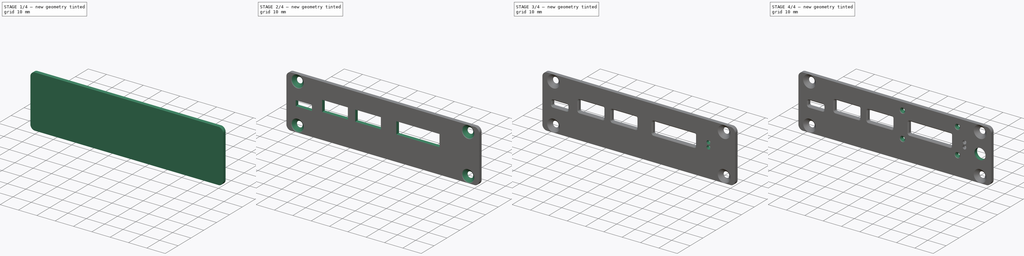
[diagram: build sequence overview — one tinted view per stage of 4, left to right]
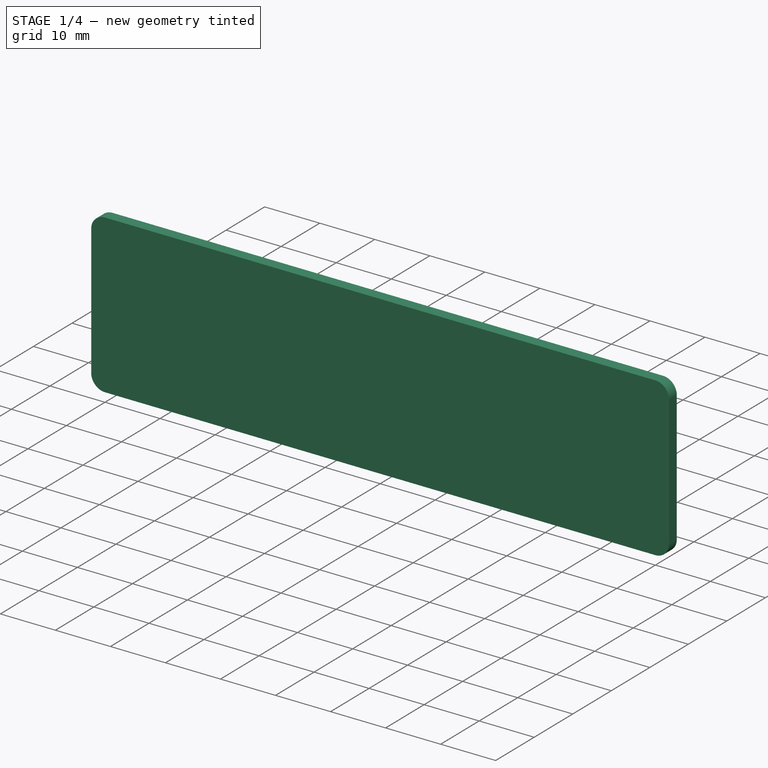
[diagram: stage 1 of 4 — iso view after this stage's code; geometry added in this stage tinted green]
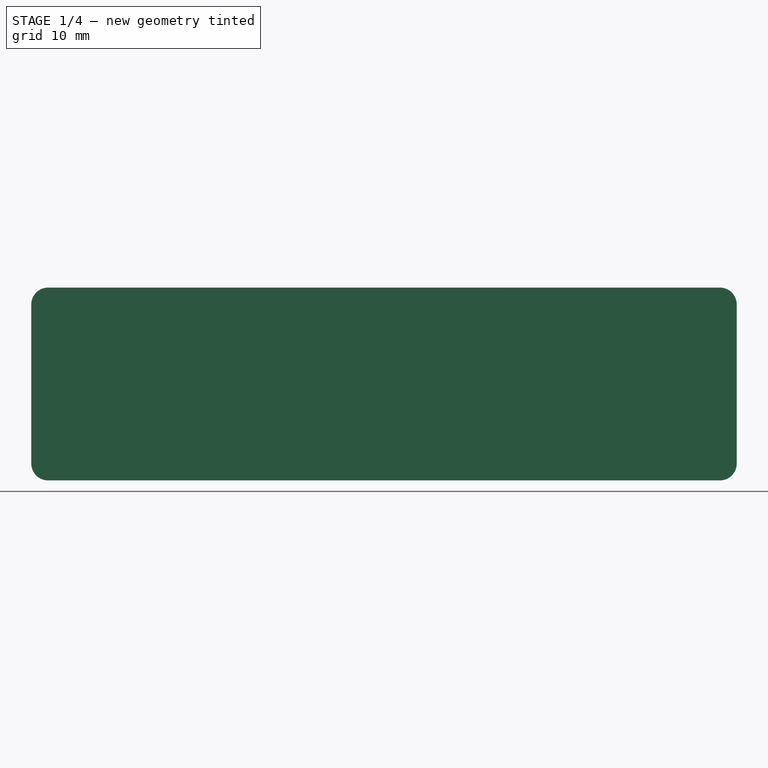
[diagram: stage 1 of 4 — front view after this stage's code; geometry added in this stage tinted green]
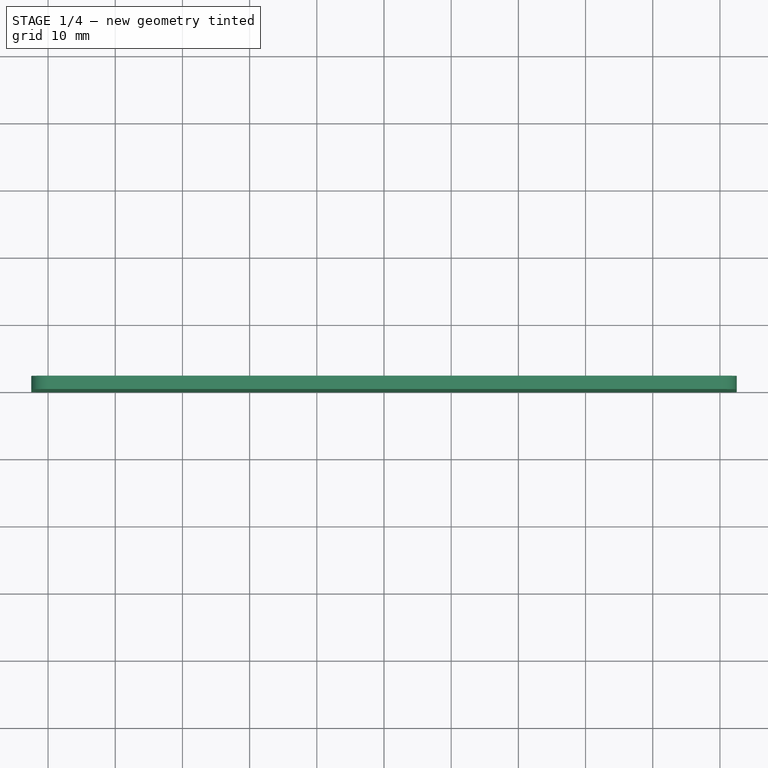
[diagram: stage 1 of 4 — top view after this stage's code; geometry added in this stage tinted green]
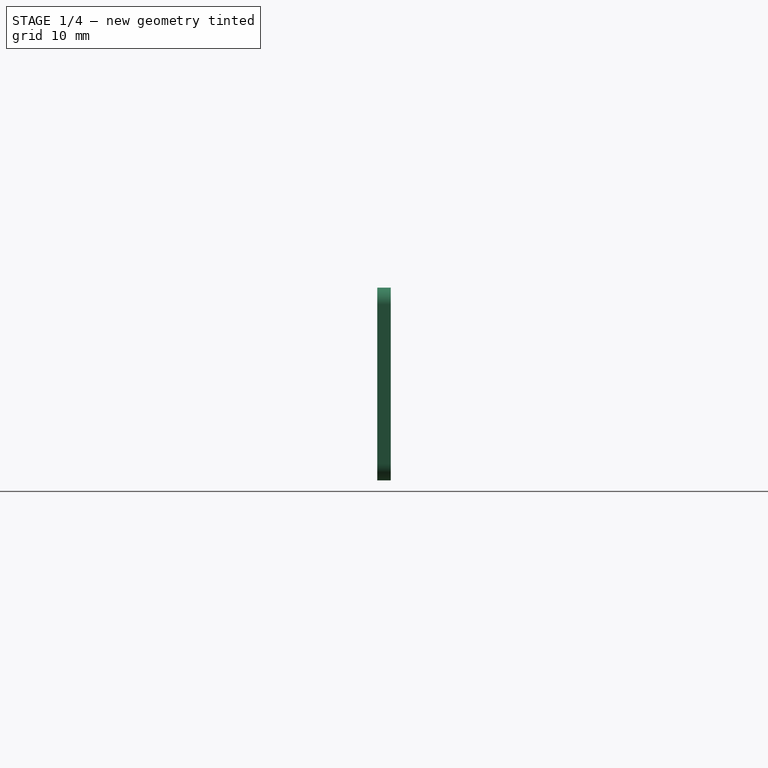
[diagram: stage 1 of 4 — right view after this stage's code; geometry added in this stage tinted green]
FCSTD DOCUMENT  (FreeCAD 0.19R24267 +99 (Git))
Label: KOH_Plate_Front
License: All rights reserved
LicenseURL: http://en.wikipedia.org/wiki/All_rights_reserved
objects: Sketcher::SketchObject×6, PartDesign::Hole×4, PartDesign::CoordinateSystem×3, PartDesign::Fillet×2, PartDesign::Pad×1, PartDesign::Pocket×1, PartDesign::Chamfer×1, PartDesign::Body×1, App::Part×1
note: 28 computed .brp shape members not serialized (recipe doc carries the construction recipe); baked Part::Feature solids carry a one-line shape summary decoded from their .brp

FEATURE [Sketcher::SketchObject] Sketch
  FullyConstrained = true
  MapMode = 5
  Placement = pos=(0,0,0) rot=(1,0,0;1.5708rad)
  Support = -> [XZ_Plane]
  sketch-geometry (4):
    g0: LineSegment StartX=-52.5 StartY=-14.35 StartZ=0 EndX=52.5 EndY=-14.35 EndZ=0
    g1: LineSegment StartX=52.5 StartY=-14.35 StartZ=0 EndX=52.5 EndY=14.35 EndZ=0
    g2: LineSegment StartX=52.5 StartY=14.35 StartZ=0 EndX=-52.5 EndY=14.35 EndZ=0
    g3: LineSegment StartX=-52.5 StartY=14.35 StartZ=0 EndX=-52.5 EndY=-14.35 EndZ=0
  constraints (10):
    c: Coincident(g0,g1)
    c: Coincident(g1,g2)
    c: Coincident(g2,g3)
    c: Coincident(g3,g0)
    c: Horizontal(g0)
    c: Vertical(g1)
    c: Symmetric(g2,g0,g-1)
    c: Symmetric(g2,g1,g-2)
    c: Distance(g2) = 105
    c: Distance(g3) = 28.7
FEATURE [PartDesign::Pad] Pad
  Direction = (1,1,1)
  Length = 2
  Length2 = 100
  Placement = pos=(0,0,0) rot=(1,0,0;1.5708rad)
  Profile = -> Sketch
  Refine = true
  Reversed = true
  Type = 0
FEATURE [PartDesign::Fillet] Fillet
  Base = -> Pad [Edge5,Edge2,Edge8,Edge1]
  BaseFeature = -> Pad
  Placement = pos=(0,0,0) rot=(1,0,0;1.5708rad)
  Radius = 2.5
  Refine = true
  SupportTransform = false
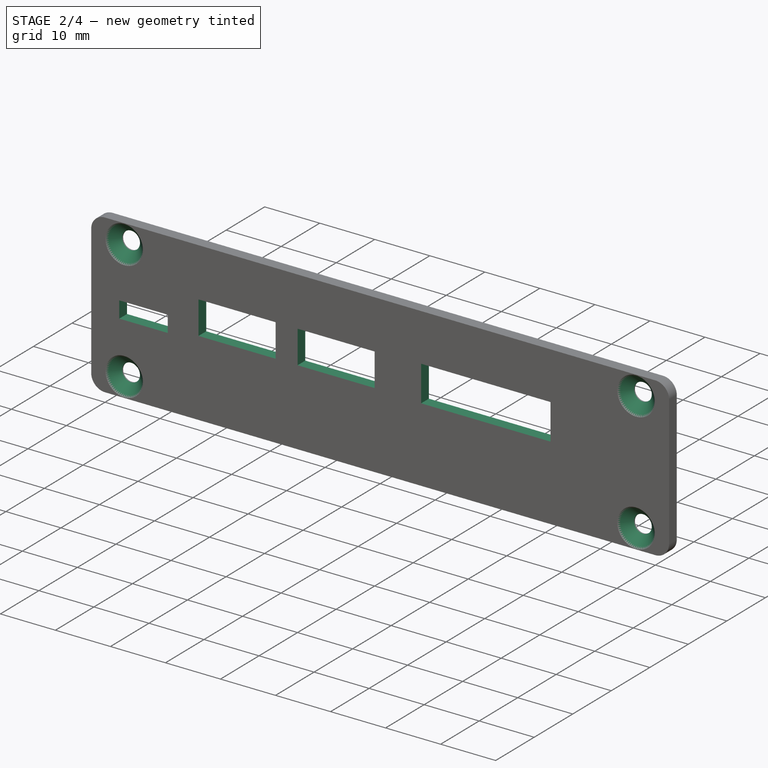
[diagram: stage 2 of 4 — iso view after this stage's code; geometry added in this stage tinted green]
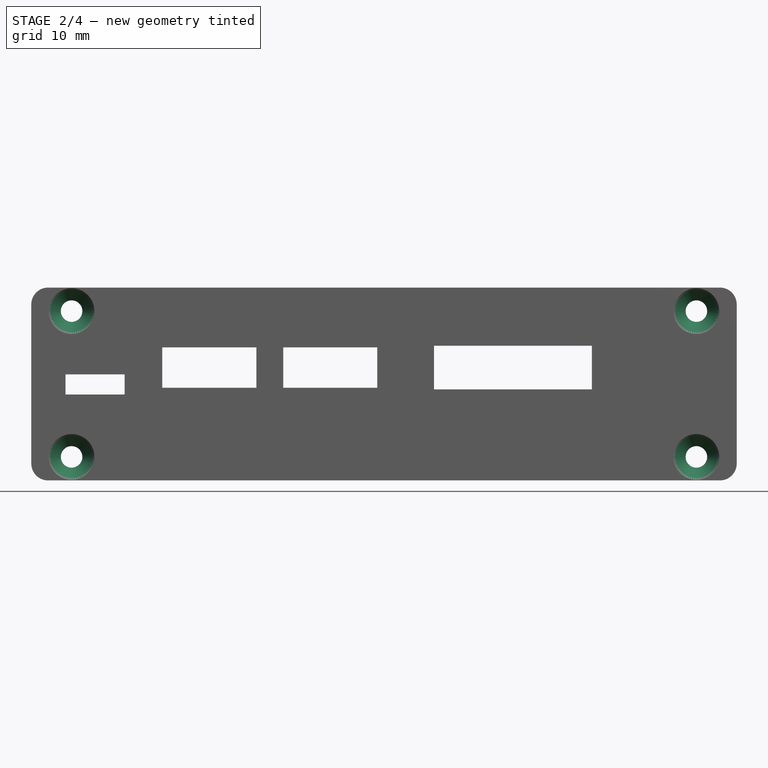
[diagram: stage 2 of 4 — front view after this stage's code; geometry added in this stage tinted green]
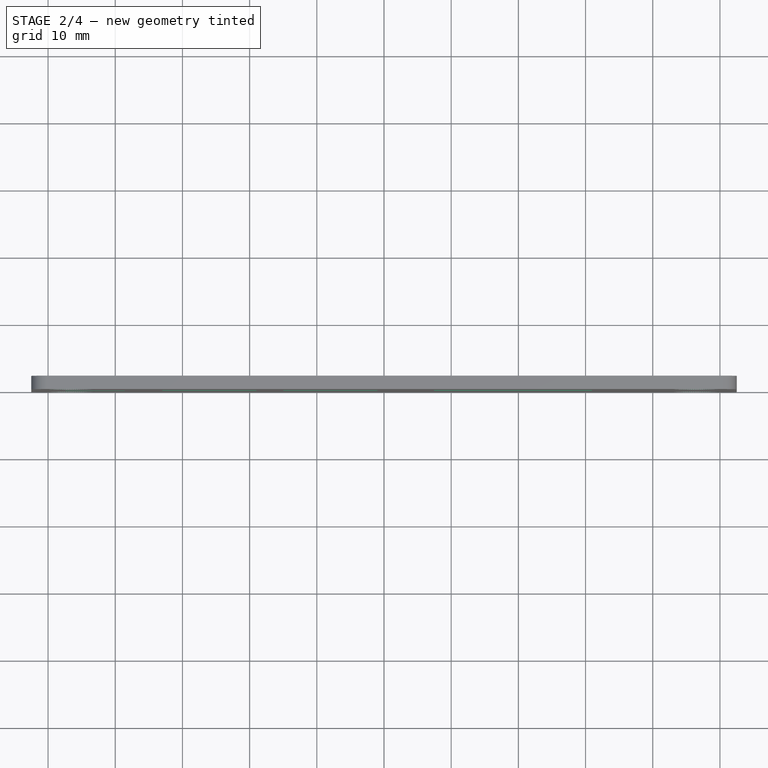
[diagram: stage 2 of 4 — top view after this stage's code; geometry added in this stage tinted green]
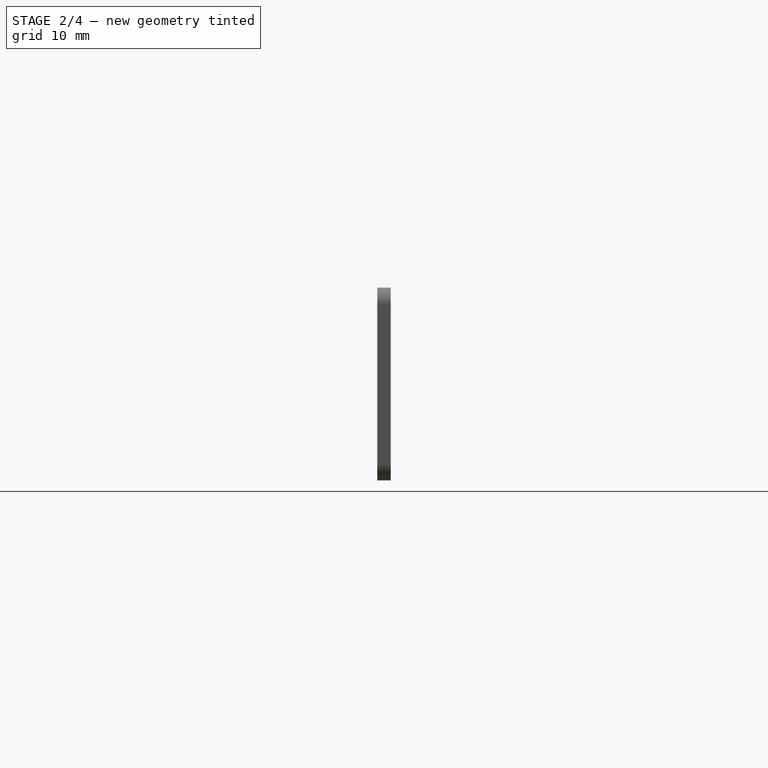
[diagram: stage 2 of 4 — right view after this stage's code; geometry added in this stage tinted green]
FEATURE [Sketcher::SketchObject] Sketch001
  FullyConstrained = true
  MapMode = 5
  Placement = pos=(0,0,0) rot=(1,0,0;1.5708rad)
  Support = -> [XZ_Plane]
  expr: Constraints[9] = Sketch.Constraints[9]
  expr: Constraints[8] = Sketch.Constraints[8]
  sketch-geometry (8):
    g0: LineSegment StartX=-52.5 StartY=-14.35 StartZ=0 EndX=52.5 EndY=-14.35 EndZ=0
    g1: LineSegment StartX=52.5 StartY=-14.35 StartZ=0 EndX=52.5 EndY=14.35 EndZ=0
    g2: LineSegment StartX=52.5 StartY=14.35 StartZ=0 EndX=-52.5 EndY=14.35 EndZ=0
    g3: LineSegment StartX=-52.5 StartY=14.35 StartZ=0 EndX=-52.5 EndY=-14.35 EndZ=0
    g4: Circle CenterX=46.5 CenterY=10.85 CenterZ=0 NormalX=0 NormalY=0 NormalZ=1 AngleXU=0 Radius=1.6
    g5: Circle CenterX=46.5 CenterY=-10.85 CenterZ=0 NormalX=0 NormalY=0 NormalZ=1 AngleXU=0 Radius=1.6
    g6: Circle CenterX=-46.5 CenterY=-10.85 CenterZ=0 NormalX=0 NormalY=0 NormalZ=1 AngleXU=0 Radius=1.6
    g7: Circle CenterX=-46.5 CenterY=10.85 CenterZ=0 NormalX=0 NormalY=0 NormalZ=1 AngleXU=0 Radius=1.6
  constraints (20):
    c: Coincident(g0,g1)
    c: Coincident(g1,g2)
    c: Coincident(g2,g3)
    c: Coincident(g3,g0)
    c: Horizontal(g0)
    c: Vertical(g1)
    c: Symmetric(g2,g0,g-1)
    c: Symmetric(g2,g1,g-2)
    c: Distance(g2) = 105
    c: Distance(g3) = 28.7
    c: Distance(g4,g2) = 3.5
    c: DistanceX(g-2,g4) = 46.5
    c: Diameter(g4) = 3.2
    c: Diameter(g5) = 3.2
    c: Symmetric(g5,g4,g-1)
    c: Diameter(g7) = 3.2
    c: Diameter(g6) = 3.2
    c: Symmetric(g7,g6,g-1)
    c: Symmetric(g7,g4,g-2)
    c: Distance(g4,g5) = 21.7
FEATURE [PartDesign::Hole] Hole
  BaseFeature = -> Fillet
  Depth = 25
  DepthType = 0
  Diameter = 3.2
  DrillForDepth = false
  DrillPoint = 1
  DrillPointAngle = 118
  HoleCutCountersinkAngle = 90
  HoleCutCustomValues = false
  HoleCutDepth = 0
  HoleCutDiameter = 6.8
  HoleCutType = 2
  ModelActualThread = false
  Placement = pos=(0,0,0) rot=(1,0,0;1.5708rad)
  Profile = -> Sketch001
  Refine = true
  Tapered = false
  TaperedAngle = 90
  ThreadAngle = 0
  ThreadClass = 0
  ThreadCutOffInner = 0
  ThreadCutOffOuter = 0
  ThreadDirection = 0
  ThreadFit = 0
  ThreadPitch = 0
  ThreadSize = 0
  ThreadType = 0
  Threaded = false
FEATURE [Sketcher::SketchObject] Sketch002  label="Cutout_FrontPanel"
  FullyConstrained = true
  MapMode = 5
  Placement = pos=(0,0,0) rot=(1,0,0;1.5708rad)
  Support = -> [XZ_Plane]
  expr: Constraints[37] = Constraints[36]
  sketch-geometry (20):
    g0: LineSegment StartX=-47.4 StartY=1.44 StartZ=0 EndX=-38.6 EndY=1.44 EndZ=0
    g1: LineSegment StartX=-38.6 StartY=1.44 StartZ=0 EndX=-38.6 EndY=-1.56 EndZ=0
    g2: LineSegment StartX=-38.6 StartY=-1.56 StartZ=0 EndX=-47.4 EndY=-1.56 EndZ=0
    g3: LineSegment StartX=-47.4 StartY=-1.56 StartZ=0 EndX=-47.4 EndY=1.44 EndZ=0
    g4: LineSegment StartX=-33 StartY=5.45 StartZ=0 EndX=-19 EndY=5.45 EndZ=0
    g5: LineSegment StartX=-19 StartY=5.45 StartZ=0 EndX=-19 EndY=-0.55 EndZ=0
    g6: LineSegment StartX=-19 StartY=-0.55 StartZ=0 EndX=-33 EndY=-0.55 EndZ=0
    g7: LineSegment StartX=-33 StartY=-0.55 StartZ=0 EndX=-33 EndY=5.45 EndZ=0
    g8: LineSegment StartX=-15 StartY=5.45 StartZ=0 EndX=-1 EndY=5.45 EndZ=0
    g9: LineSegment StartX=-1 StartY=5.45 StartZ=0 EndX=-1 EndY=-0.55 EndZ=0
    g10: LineSegment StartX=-1 StartY=-0.55 StartZ=0 EndX=-15 EndY=-0.55 EndZ=0
    g11: LineSegment StartX=-15 StartY=-0.55 StartZ=0 EndX=-15 EndY=5.45 EndZ=0
    g12: LineSegment StartX=7.45 StartY=5.7 StartZ=0 EndX=30.95 EndY=5.7 EndZ=0
    g13: LineSegment StartX=30.95 StartY=5.7 StartZ=0 EndX=30.95 EndY=-0.8 EndZ=0
    g14: LineSegment StartX=30.95 StartY=-0.8 StartZ=0 EndX=7.45 EndY=-0.8 EndZ=0
    g15: LineSegment StartX=7.45 StartY=-0.8 StartZ=0 EndX=7.45 EndY=5.7 EndZ=0
    g16: GeomPoint X=-8 Y=2.45 Z=0
    g17: GeomPoint X=-26 Y=2.45 Z=0
    g18: GeomPoint X=-43 Y=-0.06 Z=0
    g19: GeomPoint X=19.2 Y=2.45 Z=0
  constraints (55):
    c: Coincident(g0,g1)
    c: Coincident(g1,g2)
    c: Coincident(g2,g3)
    c: Coincident(g3,g0)
    c: Horizontal(g0)
    c: Horizontal(g2)
    c: Vertical(g1)
    c: Vertical(g3)
    c: Coincident(g4,g5)
    c: Coincident(g5,g6)
    c: Coincident(g6,g7)
    c: Coincident(g7,g4)
    c: Horizontal(g4)
    c: Horizontal(g6)
    c: Vertical(g5)
    c: Vertical(g7)
    c: Coincident(g8,g9)
    c: Coincident(g9,g10)
    c: Coincident(g10,g11)
    c: Coincident(g11,g8)
    c: Horizontal(g8)
    c: Horizontal(g10)
    c: Vertical(g9)
    c: Vertical(g11)
    c: Coincident(g12,g13)
    c: Coincident(g13,g14)
    c: Coincident(g14,g15)
    c: Coincident(g15,g12)
    c: Horizontal(g12)
    c: Horizontal(g14)
    c: Vertical(g13)
    c: Vertical(g15)
    c: Horizontal(g4,g8)
    c: Horizontal(g5,g10)
    c: Distance(g-1,g3) = 47.4
    c: Distance(g2) = 8.8
    c: Distance(g6) = 14
    c: Distance(g10) = 14
    c: Distance(g3) = 3
    c: Distance(g-1,g2) = 1.56
    c: Distance(g-1,g6) = 0.55
    c: Distance(g7) = 6
    c: Distance(g12) = 23.5
    c: Distance(g13) = 6.5
    c: Distance(g6,g1) = 5.6
    c: Symmetric(g8,g9,g16)
    c: Symmetric(g5,g4,g17)
    c: DistanceX(g17,g16) = 18
    c: Symmetric(g0,g1,g18)
    c: DistanceX(g18,g17) = 17
    c: Symmetric(g12,g13,g19)
    c: Horizontal(g16,g19)
    c: DistanceX(g19) = 19.2  'DisplayCenter_X'
    c: DistanceX(g8) = -15
    c: DistanceY(g19) = 2.45  'DisplayCenter_Z'
FEATURE [PartDesign::Pocket] Pocket
  BaseFeature = -> Hole
  Length = 5
  Length2 = 100
  Placement = pos=(0,0,0) rot=(1,0,0;1.5708rad)
  Profile = -> Sketch002
  Refine = true
  Type = 1
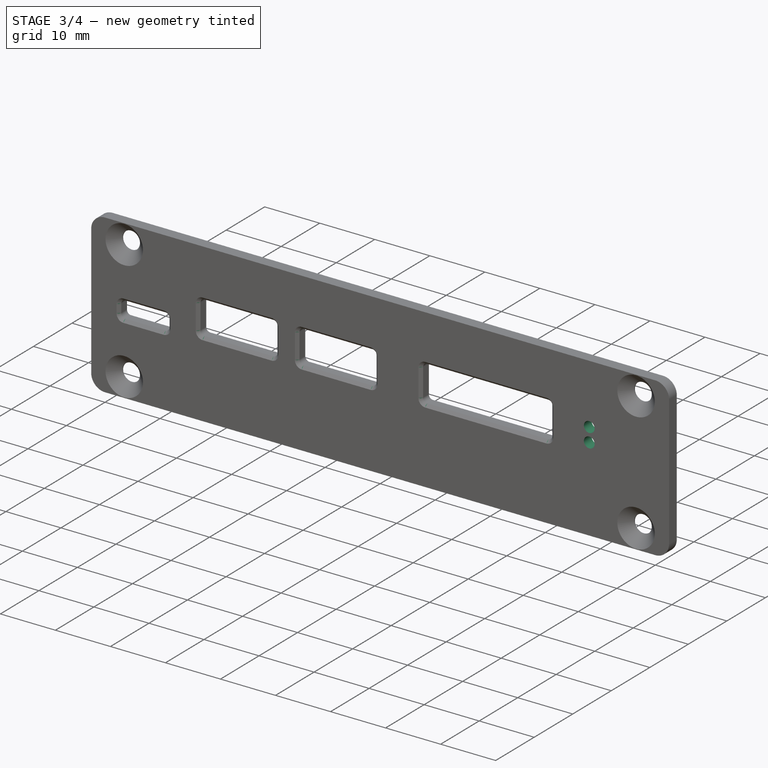
[diagram: stage 3 of 4 — iso view after this stage's code; geometry added in this stage tinted green]
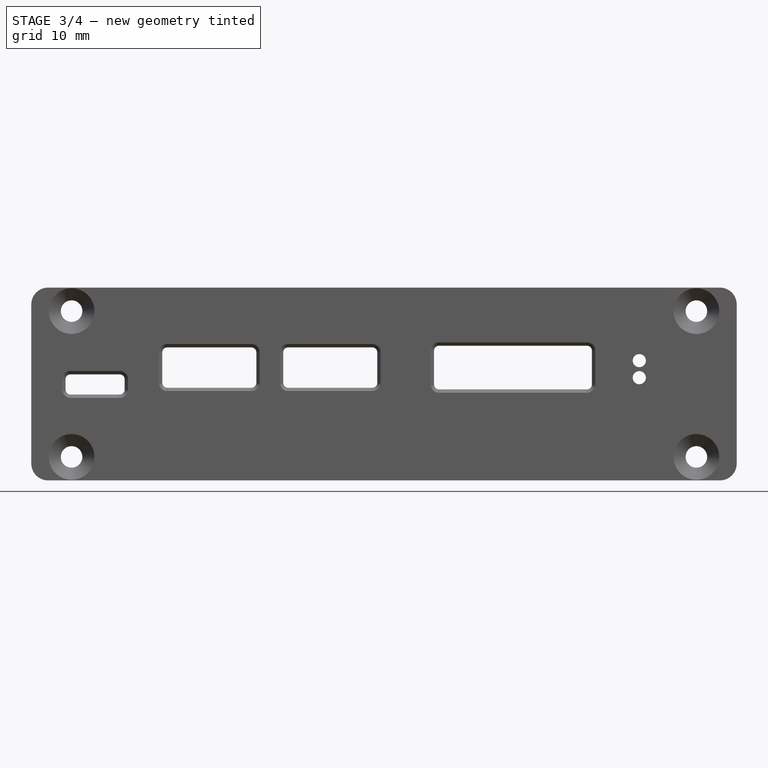
[diagram: stage 3 of 4 — front view after this stage's code; geometry added in this stage tinted green]
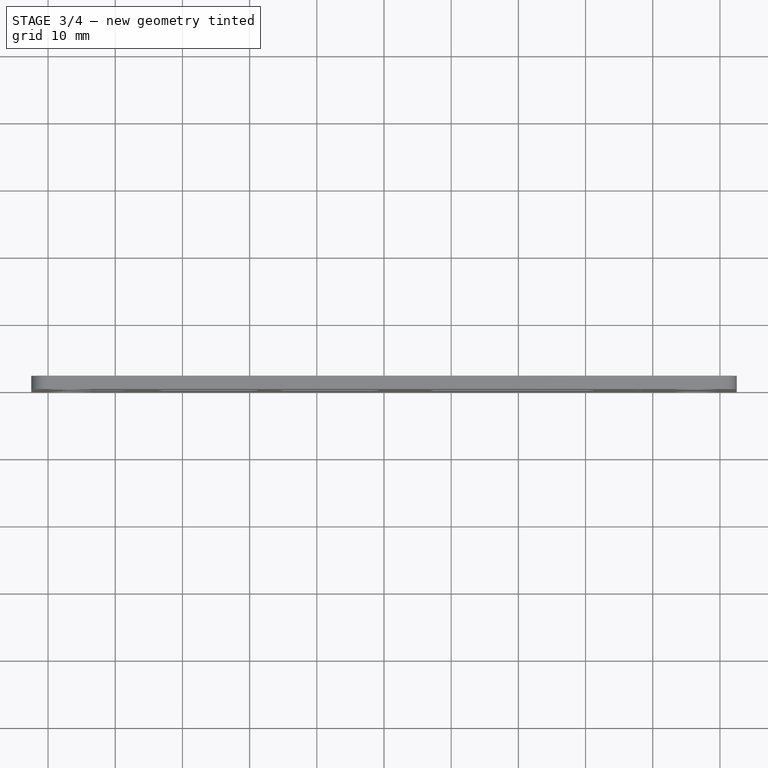
[diagram: stage 3 of 4 — top view after this stage's code; geometry added in this stage tinted green]
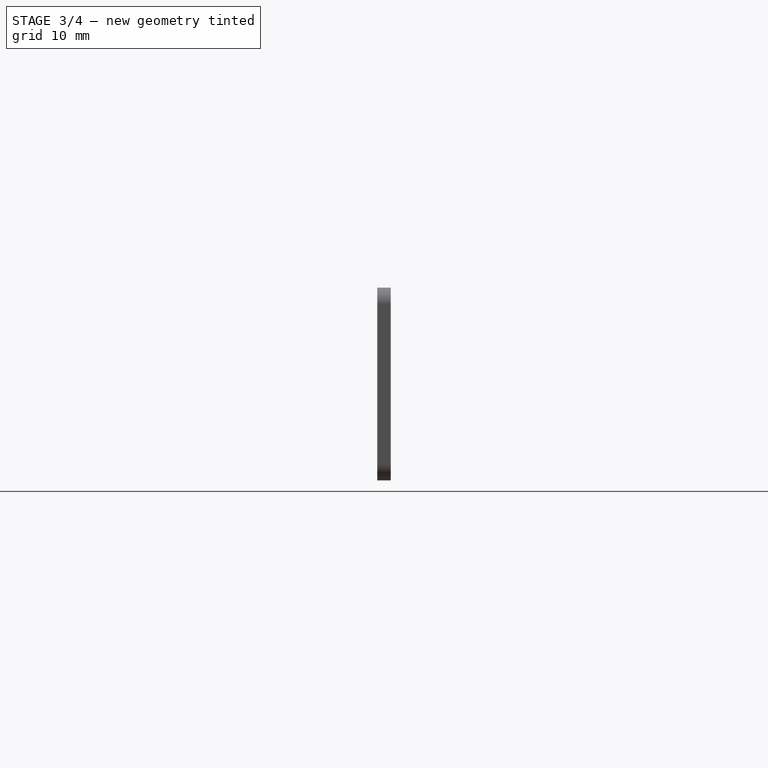
[diagram: stage 3 of 4 — right view after this stage's code; geometry added in this stage tinted green]
FEATURE [PartDesign::Fillet] Fillet001
  Base = -> Pocket [Edge69,Edge73,Edge83,Edge68,Edge76,Edge72,Edge82,Edge77,Edge75,Edge67,Edge71,Edge81,Edge84,Edge74,Edge70,Edge78]
  BaseFeature = -> Pocket
  Placement = pos=(0,0,0) rot=(1,0,0;1.5708rad)
  Radius = 0.75
  Refine = true
  SupportTransform = false
FEATURE [PartDesign::Chamfer] Chamfer
  Angle = 45
  Base = -> Fillet001 [Edge40,Edge24,Edge4,Edge32]
  BaseFeature = -> Fillet001
  ChamferType = 0
  FlipDirection = false
  Placement = pos=(0,0,0) rot=(1,0,0;1.5708rad)
  Refine = true
  Size = 0.5
  Size2 = 1
  SupportTransform = false
FEATURE [Sketcher::SketchObject] Sketch003
  FullyConstrained = true
  MapMode = 5
  Placement = pos=(0,0,0) rot=(1,0,0;1.5708rad)
  Support = -> [XZ_Plane]
  sketch-geometry (3):
    g0: Circle CenterX=38 CenterY=0.94 CenterZ=0 NormalX=0 NormalY=0 NormalZ=1 AngleXU=0 Radius=0.5
    g1: Circle CenterX=38 CenterY=3.48 CenterZ=0 NormalX=0 NormalY=0 NormalZ=1 AngleXU=0 Radius=0.5
    g2: LineSegment StartX=38 StartY=0.94 StartZ=0 EndX=38 EndY=3.48 EndZ=0
  constraints (8):
    c: Diameter(g0) = 1
    c: DistanceX(g-2,g0) = 38
    c: Diameter(g1) = 1
    c: Coincident(g0,g2)
    c: Coincident(g1,g2)
    c: Distance(g2) = 2.54
    c: Angle(g2) = 1.5708
    c: DistanceY(g-1,g0) = 0.94
FEATURE [PartDesign::Hole] Hole001
  BaseFeature = -> Chamfer
  Depth = 25
  DepthType = 0
  Diameter = 1.95
  DrillForDepth = false
  DrillPoint = 1
  DrillPointAngle = 118
  HoleCutCountersinkAngle = 90
  HoleCutCustomValues = false
  HoleCutDepth = 0
  HoleCutDiameter = 6.1
  HoleCutType = 0
  ModelActualThread = false
  Placement = pos=(0,0,0) rot=(1,0,0;1.5708rad)
  Profile = -> Sketch003
  Refine = true
  Tapered = false
  TaperedAngle = 90
  ThreadAngle = 0
  ThreadClass = 0
  ThreadCutOffInner = 0
  ThreadCutOffOuter = 0
  ThreadDirection = 0
  ThreadFit = 0
  ThreadPitch = 0
  ThreadSize = 0
  ThreadType = 0
  Threaded = false
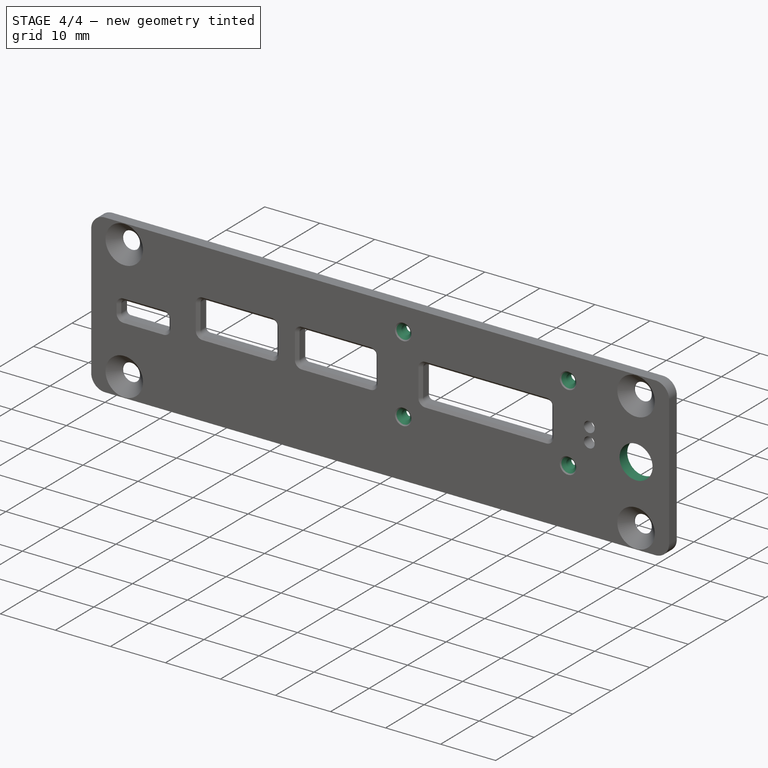
[diagram: stage 4 of 4 — iso view after this stage's code; geometry added in this stage tinted green]
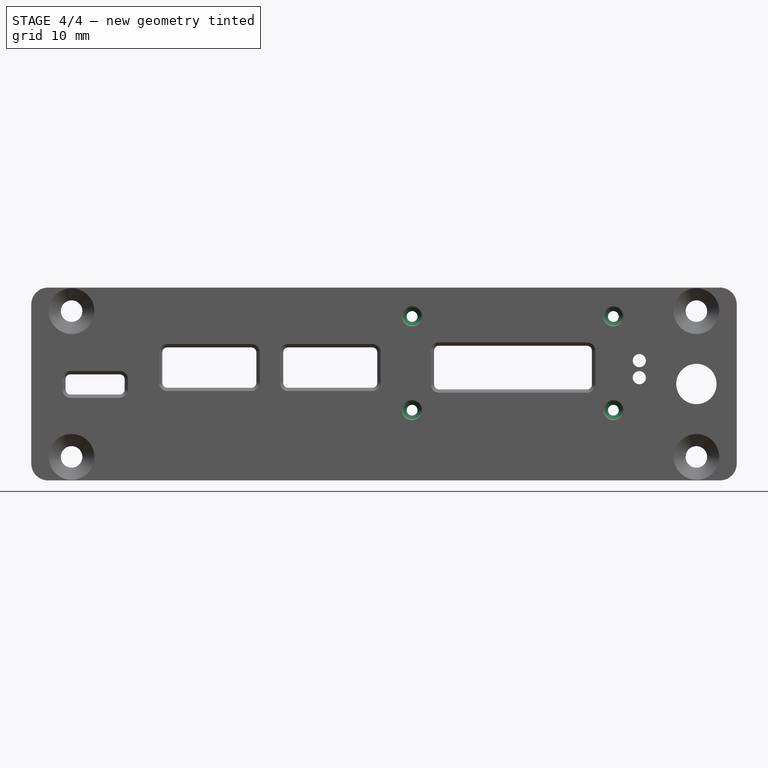
[diagram: stage 4 of 4 — front view after this stage's code; geometry added in this stage tinted green]
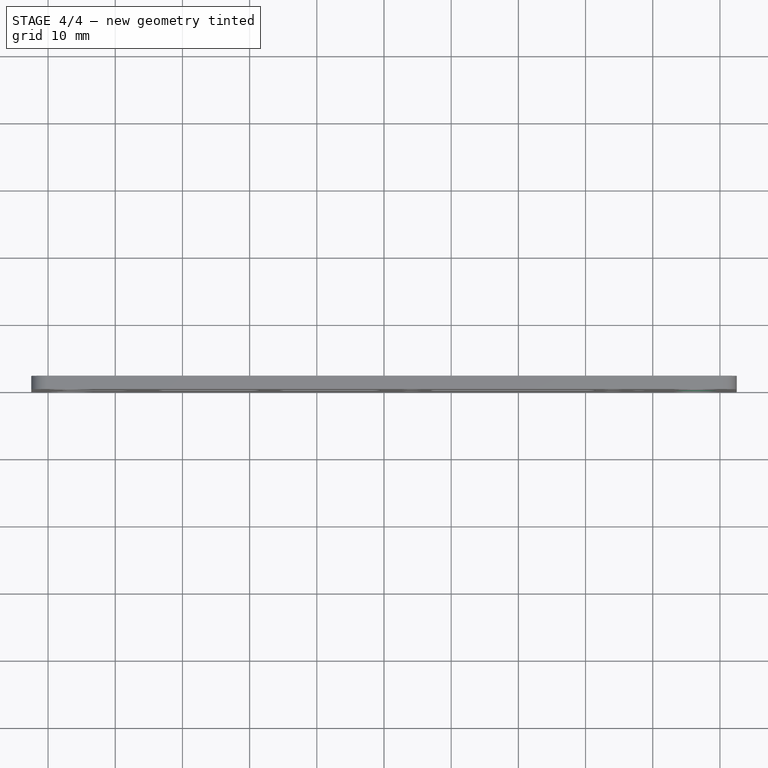
[diagram: stage 4 of 4 — top view after this stage's code; geometry added in this stage tinted green]
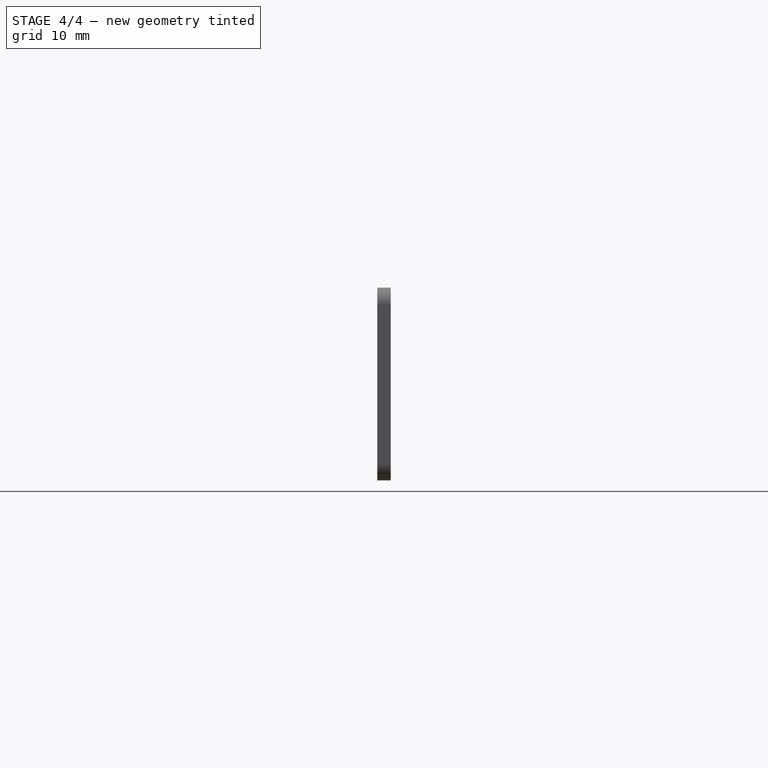
[diagram: stage 4 of 4 — right view after this stage's code; geometry added in this stage tinted green]
FEATURE [Sketcher::SketchObject] Sketch004
  FullyConstrained = true
  MapMode = 5
  Placement = pos=(0,0,0) rot=(1,0,0;1.5708rad)
  Support = -> [XZ_Plane]
  sketch-geometry (1):
    g0: Circle CenterX=46.5 CenterY=0 CenterZ=0 NormalX=0 NormalY=0 NormalZ=1 AngleXU=0 Radius=2.5
  constraints (3):
    c: PointOnObject(g0,g-1)
    c: DistanceX(g-2,g0) = 46.5
    c: Diameter(g0) = 5
FEATURE [PartDesign::CoordinateSystem] LCS_0  label="LCS_PlateFront_Center"
  AttacherType = Attacher::AttachEngine3D
  MapMode = 2
  Support = -> [X_Axis001]
FEATURE [PartDesign::Hole] Hole002
  BaseFeature = -> Hole001
  Depth = 25
  DepthType = 0
  Diameter = 6
  DrillForDepth = false
  DrillPoint = 1
  DrillPointAngle = 118
  HoleCutCountersinkAngle = 90
  HoleCutCustomValues = false
  HoleCutDepth = 0
  HoleCutDiameter = 6.1
  HoleCutType = 0
  ModelActualThread = false
  Placement = pos=(0,0,0) rot=(1,0,0;1.5708rad)
  Profile = -> Sketch004
  Refine = true
  Tapered = false
  TaperedAngle = 90
  ThreadAngle = 0
  ThreadClass = 0
  ThreadCutOffInner = 0
  ThreadCutOffOuter = 0
  ThreadDirection = 0
  ThreadFit = 0
  ThreadPitch = 0
  ThreadSize = 0
  ThreadType = 0
  Threaded = false
FEATURE [Sketcher::SketchObject] Sketch005
  FullyConstrained = false
  MapMode = 5
  Placement = pos=(0,0,0) rot=(1,0,0;1.5708rad)
  Support = -> [XZ_Plane]
  sketch-geometry (8):
    g0: LineSegment StartX=4.18177 StartY=10.0524 StartZ=0 EndX=34.1388 EndY=10.0524 EndZ=0
    g1: LineSegment StartX=34.1388 StartY=10.0524 StartZ=0 EndX=34.1388 EndY=-3.89591 EndZ=0
    g2: LineSegment StartX=34.1388 StartY=-3.89591 StartZ=0 EndX=4.18177 EndY=-3.89591 EndZ=0
    g3: LineSegment StartX=4.18177 StartY=-3.89591 StartZ=0 EndX=4.18177 EndY=10.0524 EndZ=0
    g4: Circle CenterX=4.18177 CenterY=10.0524 CenterZ=0 NormalX=0 NormalY=0 NormalZ=1 AngleXU=0 Radius=1.30359
    g5: Circle CenterX=34.1388 CenterY=10.0524 CenterZ=0 NormalX=0 NormalY=0 NormalZ=1 AngleXU=0 Radius=1.36838
    g6: Circle CenterX=34.1388 CenterY=-3.89591 CenterZ=0 NormalX=0 NormalY=0 NormalZ=1 AngleXU=0 Radius=1.83105
    g7: Circle CenterX=4.18177 CenterY=-3.89591 CenterZ=0 NormalX=0 NormalY=0 NormalZ=1 AngleXU=0 Radius=1.53393
  constraints (12):
    c: Coincident(g0,g1)
    c: Coincident(g1,g2)
    c: Coincident(g2,g3)
    c: Coincident(g3,g0)
    c: Horizontal(g0)
    c: Horizontal(g2)
    c: Vertical(g1)
    c: Vertical(g3)
    c: Coincident(g4,g0)
    c: Coincident(g5,g0)
    c: Coincident(g6,g1)
    c: Coincident(g7,g2)
FEATURE [PartDesign::Hole] Hole003
  BaseFeature = -> Hole002
  Depth = 25
  DepthType = 0
  Diameter = 1.6
  DrillForDepth = false
  DrillPoint = 1
  DrillPointAngle = 118
  HoleCutCountersinkAngle = 90
  HoleCutCustomValues = false
  HoleCutDepth = 0
  HoleCutDiameter = 3
  HoleCutType = 2
  ModelActualThread = false
  Placement = pos=(0,0,0) rot=(1,0,0;1.5708rad)
  Profile = -> Sketch005
  Refine = true
  Tapered = false
  TaperedAngle = 90
  ThreadAngle = 0
  ThreadClass = 0
  ThreadCutOffInner = 0
  ThreadCutOffOuter = 0
  ThreadDirection = 0
  ThreadFit = 0
  ThreadPitch = 0
  ThreadSize = 0
  ThreadType = 0
  Threaded = false
FEATURE [PartDesign::Body] Body
  Group = -> [Sketch,Pad,Fillet,Sketch001,Hole,Sketch002,Pocket,Fillet001,Chamfer,Sketch003,Hole001,Sketch004,Hole002,Sketch005,Hole003]
  Origin = -> Origin
  Tip = -> Hole002
FEATURE [PartDesign::CoordinateSystem] LCS_Plate_Front_CornerBottom
  AttacherType = Attacher::AttachEngine3D
  AttachmentOffset = pos=(-52.5,-14.35,0) rot=(-1,0,0;1.5708rad)
  MapMode = 5
  Placement = pos=(-52.5,3.2e-15,-14.35) rot=(0,0,1;0rad)
  Support = -> [XZ_Plane001]
FEATURE [PartDesign::CoordinateSystem] LCS_Plate_Front_DisplayCenter
  AttacherType = Attacher::AttachEngine3D
  AttachmentOffset = pos=(19.2,2.45,0) rot=(0,0,1;0rad)
  MapMode = 5
  Placement = pos=(19.2,-5e-16,2.45) rot=(1,0,0;1.5708rad)
  Support = -> [XZ_Plane001]
  expr: .AttachmentOffset.Base.x = Sketch002.Constraints.DisplayCenter_X
  expr: .AttachmentOffset.Base.y = Sketch002.Constraints.DisplayCenter_Z
FEATURE [App::Part] Plate_Front
  Group = -> [LCS_0,Body,LCS_Plate_Front_CornerBottom,LCS_Plate_Front_DisplayCenter]
  Origin = -> Origin001
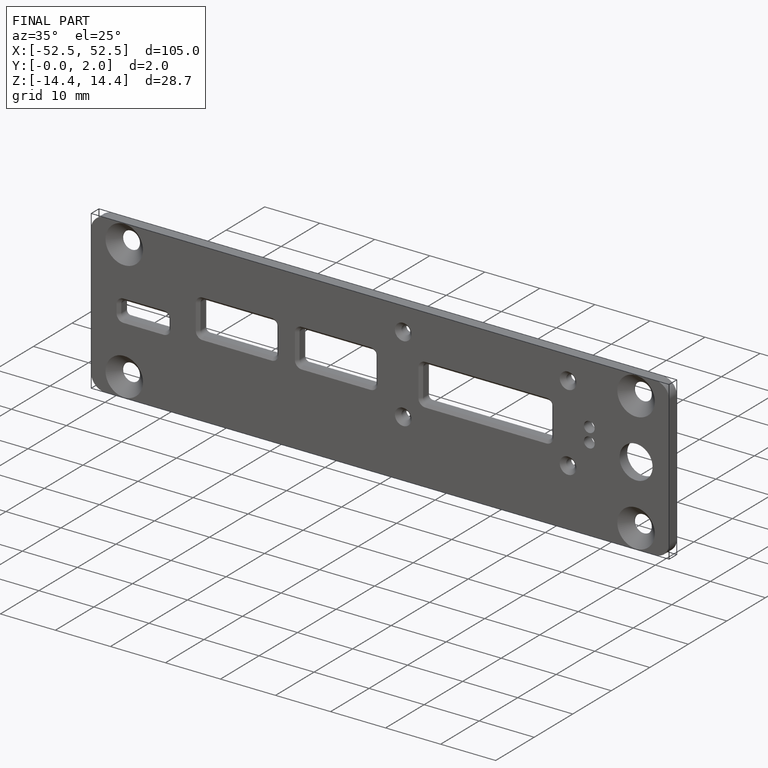
[diagram: finished part — iso view with bounding-box wireframe]
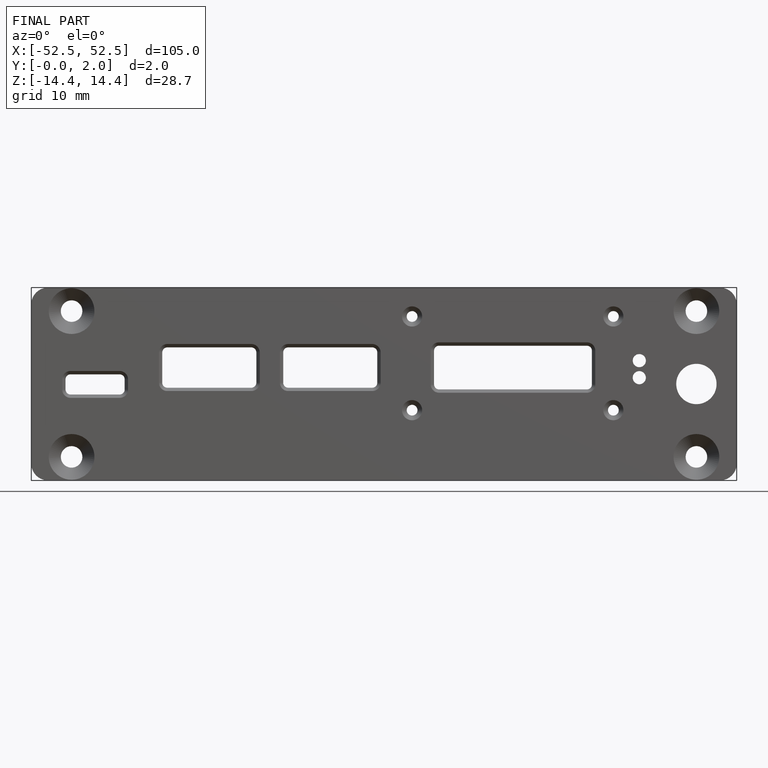
[diagram: finished part — front view with bounding-box wireframe]
